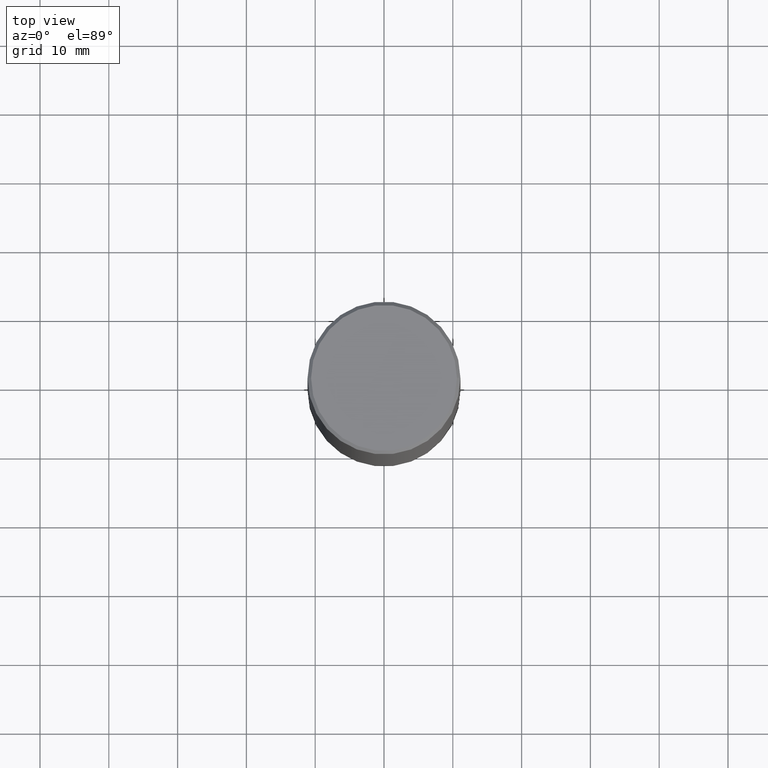
[diagram: clean part render]
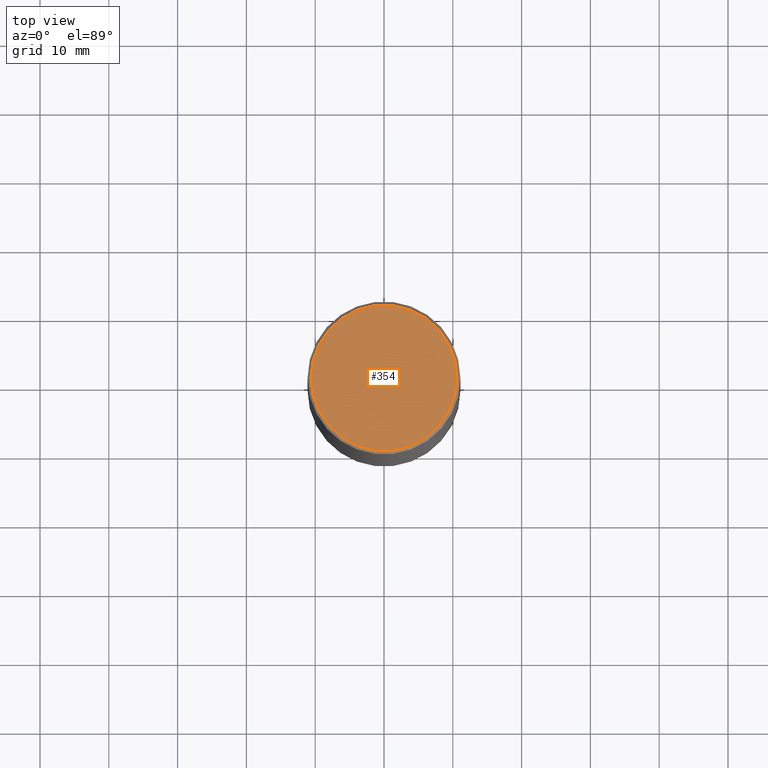
[diagram: same view with one face highlighted and labeled with its STEP entity id]
A machine part, top view. The second image highlights one B-rep face of the part: STEP entity #354.
In plain terms, the highlighted planar face has unit normal (0, -0, -1).
Its self-contained STEP definition (entity closure, byte-faithful):
#3 = ORIENTED_EDGE ( 'NONE', *, *, #185, .T. ) ;
#5 = EDGE_LOOP ( 'NONE', ( #341, #3 ) ) ;
#15 = CARTESIAN_POINT ( 'NONE',  ( -0.4174999999999996492, 2.950301731322445161E-15, 4.268512490079900125E-18 ) ) ;
#21 = PLANE ( 'NONE',  #112 ) ;
#46 = DIRECTION ( 'NONE',  ( -2.445468806185136597E-29, 3.491481338843145583E-15, 1.000000000000000000 ) ) ;
#48 = AXIS2_PLACEMENT_3D ( 'NONE', #279, #46, #159 ) ;
#75 = FACE_OUTER_BOUND ( 'NONE', #5, .T. ) ;
#99 = DIRECTION ( 'NONE',  ( -2.445468806185136597E-29, 3.491481338843145583E-15, 1.000000000000000000 ) ) ;
#112 = AXIS2_PLACEMENT_3D ( 'NONE', #336, #132, #302 ) ;
#116 = VERTEX_POINT ( 'NONE', #15 ) ;
#130 = EDGE_CURVE ( 'NONE', #116, #343, #355, .T. ) ;
#132 = DIRECTION ( 'NONE',  ( 2.438088387897960049E-29, -3.491481338843145188E-15, -1.000000000000000000 ) ) ;
#159 = DIRECTION ( 'NONE',  ( 1.000000000000000000, -6.982962677686266711E-15, 4.876119722228001824E-29 ) ) ;
#185 = EDGE_CURVE ( 'NONE', #343, #116, #350, .T. ) ;
#195 = AXIS2_PLACEMENT_3D ( 'NONE', #240, #99, #216 ) ;
#216 = DIRECTION ( 'NONE',  ( 1.000000000000000000, -6.982962677686266711E-15, 4.876119722228001824E-29 ) ) ;
#223 = CARTESIAN_POINT ( 'NONE',  ( 0.4174999999999996492, -2.967777707435759010E-15, 4.268512490120983292E-18 ) ) ;
#240 = CARTESIAN_POINT ( 'NONE',  ( -1.043851414335219820E-46, 1.490343170380447200E-32, 4.268512490100411279E-18 ) ) ;
#279 = CARTESIAN_POINT ( 'NONE',  ( -1.043851414335219820E-46, 1.490343170380447200E-32, 4.268512490100411279E-18 ) ) ;
#302 = DIRECTION ( 'NONE',  ( -1.000000000000000000, 6.982962677686265922E-15, -4.876176775795935793E-29 ) ) ;
#336 = CARTESIAN_POINT ( 'NONE',  ( 2.915386917934013512E-15, 0.4174999999999996492, -1.455559202721961867E-15 ) ) ;
#341 = ORIENTED_EDGE ( 'NONE', *, *, #130, .T. ) ;
#343 = VERTEX_POINT ( 'NONE', #223 ) ;
#350 = CIRCLE ( 'NONE', #48, 0.4174999999999996492 ) ;
#354 = ADVANCED_FACE ( 'NONE', ( #75 ), #21, .F. ) ;
#355 = CIRCLE ( 'NONE', #195, 0.4174999999999996492 ) ;